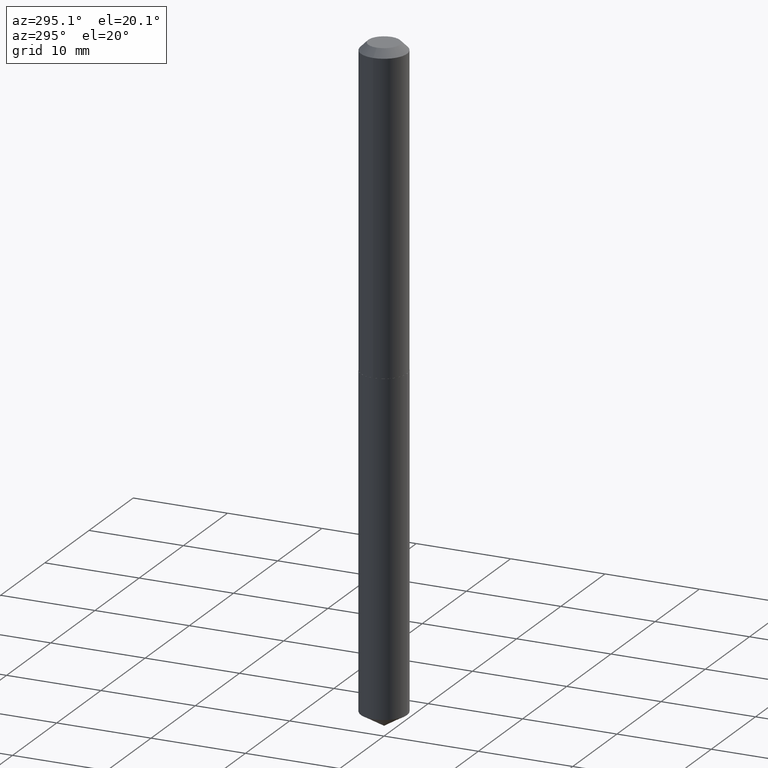
[diagram: clean part render]
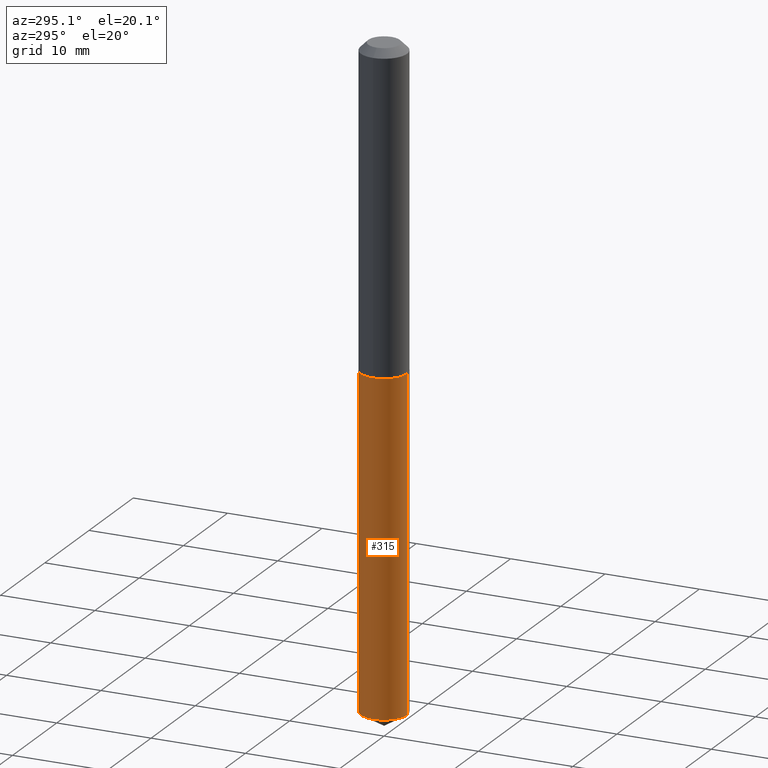
[diagram: same view with one face highlighted and labeled with its STEP entity id]
A machine part, auxiliary view. The second image highlights one B-rep face of the part: STEP entity #315.
In plain terms, the highlighted cylindrical surface (edge-blend (fillet) strip) has radius 2.4575 mm, axis along (-0, 0, 1).
Its self-contained STEP definition (entity closure, byte-faithful):
#1 = CIRCLE ( 'NONE', #223, 0.09675000000000000266 ) ;
#37 = CARTESIAN_POINT ( 'NONE',  ( 3.224350620955102598E-29, -4.603518145264687138E-15, -1.318499999999999783 ) ) ;
#43 = AXIS2_PLACEMENT_3D ( 'NONE', #285, #104, #84 ) ;
#45 = CARTESIAN_POINT ( 'NONE',  ( 6.874500968479290948E-16, 0.09674999999999539524, -1.318500000000000227 ) ) ;
#48 = CARTESIAN_POINT ( 'NONE',  ( -6.756016390661139925E-16, -0.09675000000000461009, -1.318499999999999561 ) ) ;
#65 = VERTEX_POINT ( 'NONE', #83 ) ;
#68 = CARTESIAN_POINT ( 'NONE',  ( 6.874500968479629173E-16, 0.09674999999999539524, -1.318500000000000227 ) ) ;
#76 = LINE ( 'NONE', #45, #189 ) ;
#83 = CARTESIAN_POINT ( 'NONE',  ( 6.874500968479628186E-16, 0.09674999999999060740, -2.691866735109083919 ) ) ;
#84 = DIRECTION ( 'NONE',  ( -6.982962677686265922E-15, -1.000000000000000000, 2.823615497327403880E-15 ) ) ;
#104 = DIRECTION ( 'NONE',  ( -2.445534353005250934E-29, 3.491387472066048584E-15, 1.000000000000000000 ) ) ;
#111 = DIRECTION ( 'NONE',  ( -2.445534353005250934E-29, 3.491387472066048584E-15, 1.000000000000000000 ) ) ;
#119 = EDGE_LOOP ( 'NONE', ( #143, #368, #386, #215 ) ) ;
#125 = VECTOR ( 'NONE', #213, 39.37007874015748143 ) ;
#130 = CYLINDRICAL_SURFACE ( 'NONE', #388, 0.09675000000000000266 ) ;
#143 = ORIENTED_EDGE ( 'NONE', *, *, #246, .F. ) ;
#144 = CIRCLE ( 'NONE', #43, 0.09675000000000000266 ) ;
#158 = DIRECTION ( 'NONE',  ( -2.445534353005250934E-29, 3.491387472066048584E-15, 1.000000000000000000 ) ) ;
#168 = CARTESIAN_POINT ( 'NONE',  ( 6.582966150939029299E-29, -9.398473558776792284E-15, -2.691866735109083475 ) ) ;
#173 = EDGE_CURVE ( 'NONE', #217, #235, #232, .T. ) ;
#189 = VECTOR ( 'NONE', #111, 39.37007874015748143 ) ;
#213 = DIRECTION ( 'NONE',  ( -2.445534353005250934E-29, 3.491387472066048584E-15, 1.000000000000000000 ) ) ;
#215 = ORIENTED_EDGE ( 'NONE', *, *, #279, .F. ) ;
#217 = VERTEX_POINT ( 'NONE', #316 ) ;
#223 = AXIS2_PLACEMENT_3D ( 'NONE', #168, #258, #375 ) ;
#232 = LINE ( 'NONE', #269, #125 ) ;
#235 = VERTEX_POINT ( 'NONE', #48 ) ;
#246 = EDGE_CURVE ( 'NONE', #65, #357, #76, .T. ) ;
#258 = DIRECTION ( 'NONE',  ( -2.445534353005250934E-29, 3.491387472066048584E-15, 1.000000000000000000 ) ) ;
#269 = CARTESIAN_POINT ( 'NONE',  ( -6.756016390661139925E-16, -0.09675000000000461009, -1.318499999999999561 ) ) ;
#275 = EDGE_CURVE ( 'NONE', #65, #217, #1, .T. ) ;
#279 = EDGE_CURVE ( 'NONE', #357, #235, #144, .T. ) ;
#285 = CARTESIAN_POINT ( 'NONE',  ( 3.224350620955102598E-29, -4.603518145264687138E-15, -1.318499999999999783 ) ) ;
#308 = FACE_OUTER_BOUND ( 'NONE', #119, .T. ) ;
#315 = ADVANCED_FACE ( 'NONE', ( #308 ), #130, .T. ) ;
#316 = CARTESIAN_POINT ( 'NONE',  ( -6.756016390660803673E-16, -0.09675000000000941180, -2.691866735109083031 ) ) ;
#357 = VERTEX_POINT ( 'NONE', #68 ) ;
#368 = ORIENTED_EDGE ( 'NONE', *, *, #275, .T. ) ;
#375 = DIRECTION ( 'NONE',  ( -6.982962677686265922E-15, -1.000000000000000000, 5.647230994654807760E-15 ) ) ;
#376 = DIRECTION ( 'NONE',  ( -6.982962677686265922E-15, -1.000000000000000000, 2.823615497327403880E-15 ) ) ;
#386 = ORIENTED_EDGE ( 'NONE', *, *, #173, .T. ) ;
#388 = AXIS2_PLACEMENT_3D ( 'NONE', #37, #158, #376 ) ;